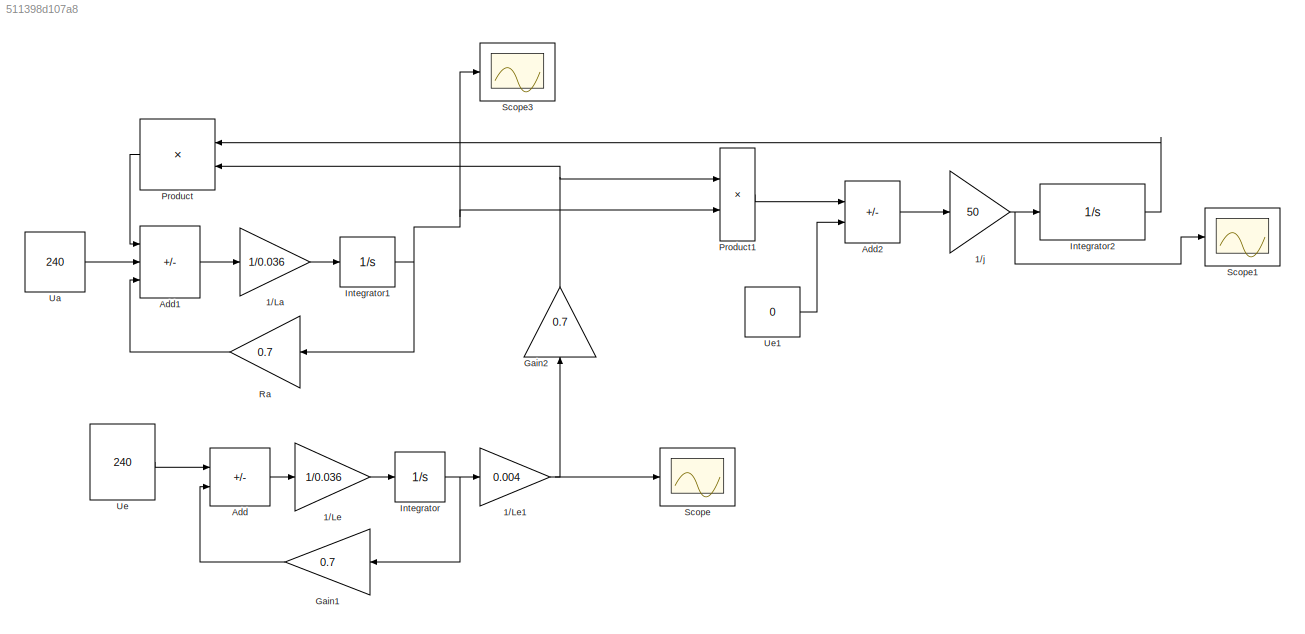
MODEL slx_511398d107a8
KIND model
CONFIG AbsTol = auto
CONFIG EnableMultiTasking = off
CONFIG FixedStep = 0.01
CONFIG MaxStep = auto
CONFIG MinStep = auto
CONFIG RelTol = 1e-3
CONFIG SampleTimeConstraint = Unconstrained
CONFIG SolverName = FixedStepAuto
CONFIG StartTime = 0.0
CONFIG StopTime = 1
BLOCK [Gain] 1//La
  Gain = 1/0.036
BLOCK [Gain] 1//Le
  Gain = 1/0.036
BLOCK [Gain] 1//Le1
  Gain = 0.004
BLOCK [Gain] 1//j
  Gain = 50
BLOCK [Sum] Add
  IconShape = rectangular
  Inputs = +-
  Ports = [2, 1]
BLOCK [Sum] Add1
  IconShape = rectangular
  Inputs = -+-
  Ports = [3, 1]
BLOCK [Sum] Add2
  IconShape = rectangular
  Inputs = +-
  Ports = [2, 1]
BLOCK [Gain] Gain1
  Gain = 0.7
  NameLocation = top
BLOCK [Gain] Gain2
  Gain = 0.7
  NameLocation = right
BLOCK [Integrator] Integrator
  Ports = [1, 1]
BLOCK [Integrator] Integrator1
  Ports = [1, 1]
BLOCK [Integrator] Integrator2
  Ports = [1, 1]
BLOCK [Product] Product
  NameLocation = top
  Ports = [2, 1]
BLOCK [Product] Product1
  Ports = [2, 1]
BLOCK [Gain] Ra
  Gain = 0.7
  NameLocation = top
BLOCK [Scope] Scope
  Floating = off
  NumInputPorts = 1
  Ports = [1]
  ScopeSpecificationString = Simulink.scopes.TimeScopeBlockCfg('CurrentConfiguration', extmgr.ConfigurationSet(extmgr.Configuration('Core','General UI',true),extmgr.Configuration('Core','Source UI',true),extmgr.Configuration('Sources','WiredSimulink',true),extmgr.Configuration('Visuals','Time Domain',true,'SerializedDisplays',{struct('MinYLimReal','-0.17143','MaxYLimReal','1.54286','YLabelReal','','MinYLimMag','0.00000','MaxY...<+1360ch>
BLOCK [Scope] Scope1
  Floating = off
  NumInputPorts = 1
  Ports = [1]
  ScopeSpecificationString = Simulink.scopes.TimeScopeBlockCfg('CurrentConfiguration', extmgr.ConfigurationSet(extmgr.Configuration('Core','General UI',true),extmgr.Configuration('Core','Source UI',true),extmgr.Configuration('Sources','WiredSimulink',true,'DataLoggingVariableName','ScopeData1'),extmgr.Configuration('Visuals','Time Domain',true,'SerializedDisplays',{struct('MinYLimReal','-5410.88415','MaxYLimReal','7770.57741'...<+1419ch>
BLOCK [Scope] Scope3
  Floating = off
  NumInputPorts = 1
  Ports = [1]
  ScopeSpecificationString = Simulink.scopes.TimeScopeBlockCfg('CurrentConfiguration', extmgr.ConfigurationSet(extmgr.Configuration('Core','General UI',true),extmgr.Configuration('Core','Source UI',true),extmgr.Configuration('Sources','WiredSimulink',true,'DataLoggingVariableName','ScopeData3'),extmgr.Configuration('Visuals','Time Domain',true,'SerializedDisplays',{struct('MinYLimReal','-124.49814','MaxYLimReal','228.11764','...<+1419ch>
BLOCK [Constant] Ua
  Value = 240
BLOCK [Constant] Ue
  Value = 240
BLOCK [Constant] Ue1
  Value = 0
LINE 1//La:1 -> Integrator1:1
NET 1//Le1:1 -> Gain2:1, Scope:1
LINE 1//Le:1 -> Integrator:1
NET 1//j:1 -> Integrator2:1, Scope1:1
LINE Add1:1 -> 1//La:1
LINE Add2:1 -> 1//j:1
LINE Add:1 -> 1//Le:1
LINE Gain1:1 -> Add:2
NET Gain2:1 -> Product1:1, Product:2
NET Integrator1:1 -> Product1:2, Ra:1, Scope3:1
LINE Integrator2:1 -> Product:1
NET Integrator:1 -> 1//Le1:1, Gain1:1
LINE Product1:1 -> Add2:1
LINE Product:1 -> Add1:1
LINE Ra:1 -> Add1:3
LINE Ua:1 -> Add1:2
LINE Ue1:1 -> Add2:2
LINE Ue:1 -> Add:1
note: NET lines group one-source signal fan-out (src -> all destinations, sorted); 1:1 wires keep LINE
